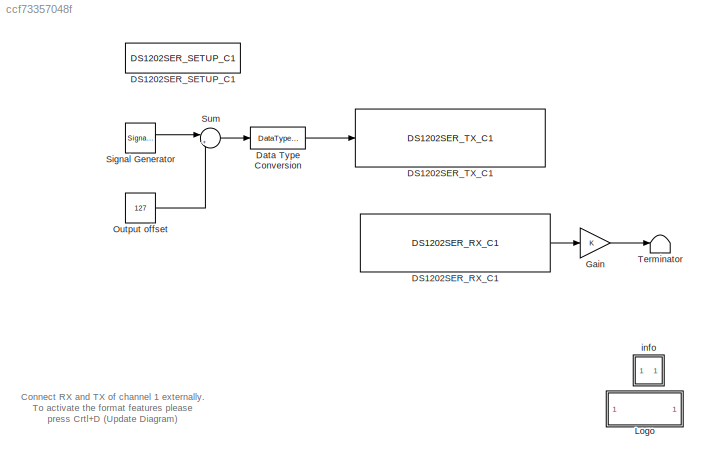
MODEL slx_ccf73357048f
KIND model
CONFIG AbsTol = auto
CONFIG FixedStep = 0.001
CONFIG MaxStep = auto
CONFIG MinStep = auto
CONFIG PostLoadFcn = , if any(exist('dsrtsu_mdlpostloadfcn', 'file') == [2, 3, 6]), try dsrtsu_mdlpostloadfcn('Execute', bdroot); catch fprintf('Error in PostLoadFcn (dsrtsu_mdlpostloadfcn) for model "%s":\n %s\n', bdroot, lasterr); end, end, \n
CONFIG RelTol = 1e-3
CONFIG SampleTimeConstraint = Unconstrained
CONFIG Solver = FixedStepDiscrete
CONFIG SolverMode = SingleTasking
CONFIG SolverName = FixedStepDiscrete
CONFIG StartTime = 0.0
CONFIG StopTime = Inf
BLOCK [Reference] DS1202SER_RX_C1  REF=rti1202serlib/DS1202SER_RX_C1
  Ports = [0, 1]
  SourceBlock = rti1202serlib/DS1202SER_RX_C1
  SourceType = RTI
BLOCK [Reference] DS1202SER_SETUP_C1  REF=rti1202serlib/DS1202SER_SETUP_C1
  Ports = []
  SourceBlock = rti1202serlib/DS1202SER_SETUP_C1
  SourceType = RTI
BLOCK [Reference] DS1202SER_TX_C1  REF=rti1202serlib/DS1202SER_TX_C1
  Ports = [1]
  SourceBlock = rti1202serlib/DS1202SER_TX_C1
  SourceType = RTI
BLOCK [DataTypeConversion] Data Type Conversion
BLOCK [Gain] Gain
BLOCK [SubSystem] Logo
  OpenFcn = ;
  Ports = []
  RequestExecContextInheritance = off
  Variant = off
BLOCK [Constant] Output offset
  Value = 127
BLOCK [SignalGenerator] Signal Generator
  Amplitude = 127
  Frequency = 10
  Ports = [0, 1]
BLOCK [Sum] Sum
  IconShape = round
  Inputs = |++
  Ports = [2, 1]
BLOCK [Terminator] Terminator
BLOCK [SubSystem] info
  OpenFcn = web(fullfile(dspaceroot, 'demos', rtitype('processorboard'), 'rti', 'demo1xxx_serial_1.html'), '-browser');
  Ports = []
  RequestExecContextInheritance = off
  ShowPortLabels = none
  Variant = off
ANNOTATION (root): Connect RX and TX of channel 1 externally. To activate the format features please press Crtl+D (Update Diagram)
ANNOTATION Logo: $Date: 2012/07/16 15:49:27MESZ $
ANNOTATION Logo: $RCSfile: demo1401_serial_1.mdl $
ANNOTATION Logo: $Revision: 2.3 $
LINE DS1202SER_RX_C1:1 -> Gain:1
LINE Data Type Conversion:1 -> DS1202SER_TX_C1:1
LINE Gain:1 -> Terminator:1
LINE Output offset:1 -> Sum:2
LINE Signal Generator:1 -> Sum:1
LINE Sum:1 -> Data Type Conversion:1
